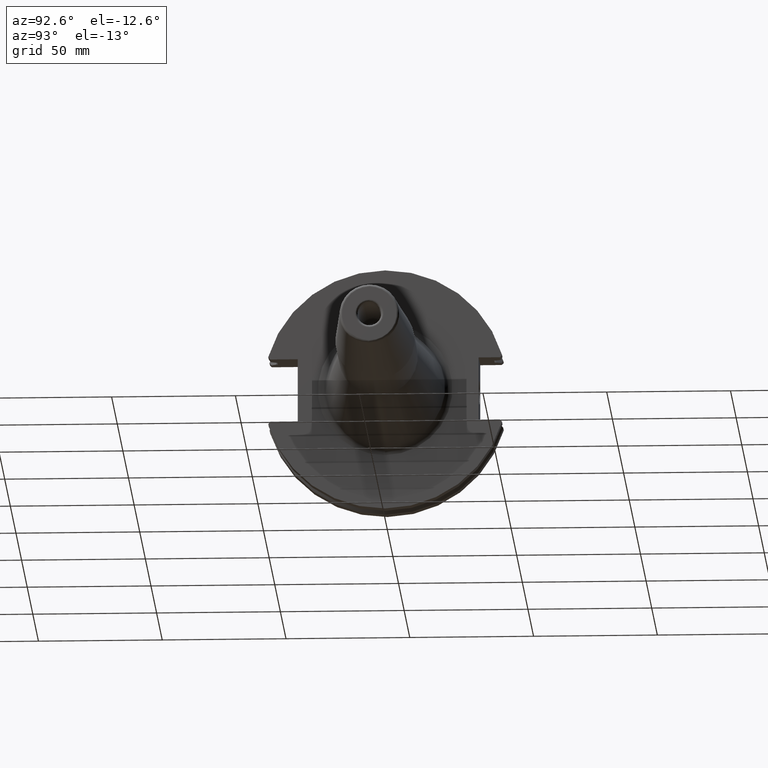
[diagram: clean part render]
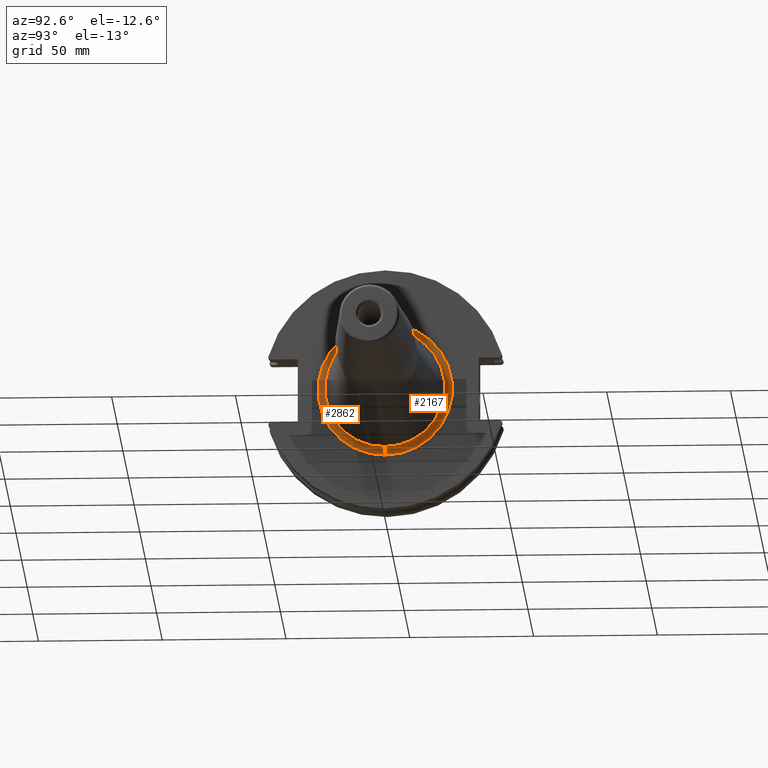
[diagram: same view with one multi-face feature highlighted, each face labeled with its STEP entity id]
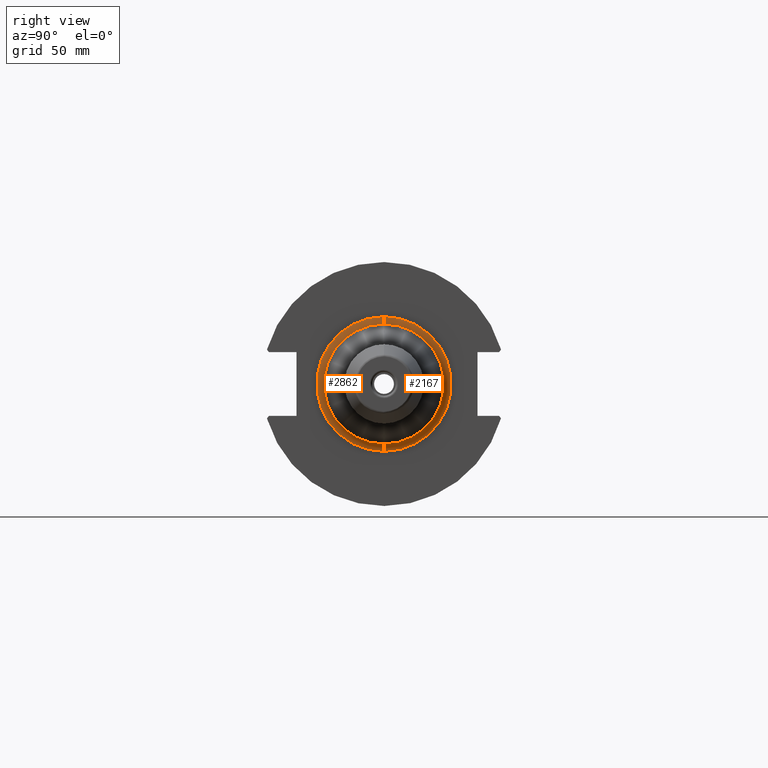
[diagram: same view with one multi-face feature highlighted, each face labeled with its STEP entity id]
A machine part, auxiliary view. The highlighted faces form ONE feature: a constant-radius fillet chain: 2 tangent blend faces with common blend radius 3 mm. The faces share edges in the B-rep.
A second angle (right view) of the same feature is appended — it is thin or edge-on in the first view.
Their STEP definitions:
[1] entity #2862 (Torus):
#575=CARTESIAN_POINT('',(1.905E1,0.E0,0.E0));
#576=DIRECTION('',(1.E0,0.E0,0.E0));
#577=DIRECTION('',(0.E0,0.E0,1.E0));
#578=AXIS2_PLACEMENT_3D('',#575,#576,#577);
#1059=CARTESIAN_POINT('',(2.205E1,0.E0,2.717382408856E1));
#1060=DIRECTION('',(0.E0,1.E0,0.E0));
#1061=DIRECTION('',(-1.391731009601E-1,0.E0,-9.902680687416E-1));
#1062=AXIS2_PLACEMENT_3D('',#1059,#1060,#1061);
#1064=CARTESIAN_POINT('',(2.163248069712E1,0.E0,0.E0));
#1065=DIRECTION('',(-1.E0,0.E0,0.E0));
#1066=DIRECTION('',(0.E0,0.E0,-1.E0));
#1067=AXIS2_PLACEMENT_3D('',#1064,#1065,#1066);
#1069=CARTESIAN_POINT('',(2.205E1,0.E0,-2.717382408856E1));
#1070=DIRECTION('',(0.E0,-1.E0,0.E0));
#1071=DIRECTION('',(-1.391731009601E-1,0.E0,9.902680687416E-1));
#1072=AXIS2_PLACEMENT_3D('',#1069,#1070,#1071);
#1321=CARTESIAN_POINT('',(2.163248069712E1,0.E0,-2.420301988234E1));
#1322=VERTEX_POINT('',#1321);
#1351=CARTESIAN_POINT('',(2.163248069712E1,0.E0,2.420301988234E1));
#1352=VERTEX_POINT('',#1351);
#1357=CARTESIAN_POINT('',(1.905E1,0.E0,-2.717382408856E1));
#1358=CARTESIAN_POINT('',(1.905E1,0.E0,2.717382408856E1));
#1359=VERTEX_POINT('',#1357);
#1360=VERTEX_POINT('',#1358);
#2851=CARTESIAN_POINT('',(2.205E1,0.E0,0.E0));
#2852=DIRECTION('',(1.E0,0.E0,0.E0));
#2853=DIRECTION('',(0.E0,0.E0,1.E0));
#2854=AXIS2_PLACEMENT_3D('',#2851,#2852,#2853);
#2855=TOROIDAL_SURFACE('',#2854,2.717382408856E1,3.E0);
#2856=ORIENTED_EDGE('',*,*,#2200,.F.);
#2857=ORIENTED_EDGE('',*,*,#2163,.F.);
#2858=ORIENTED_EDGE('',*,*,#2132,.F.);
#2859=ORIENTED_EDGE('',*,*,#2160,.T.);
#2860=EDGE_LOOP('',(#2856,#2857,#2858,#2859));
#2861=FACE_OUTER_BOUND('',#2860,.F.);
#2862=ADVANCED_FACE('',(#2861),#2855,.F.);
#579=CIRCLE('',#578,2.717382408856E1);
#1063=CIRCLE('',#1062,3.E0);
#1068=CIRCLE('',#1067,2.420301988234E1);
#1073=CIRCLE('',#1072,3.E0);
#2132=EDGE_CURVE('',#1322,#1352,#1068,.T.);
#2160=EDGE_CURVE('',#1322,#1359,#1073,.T.);
#2163=EDGE_CURVE('',#1352,#1360,#1063,.T.);
#2200=EDGE_CURVE('',#1360,#1359,#579,.T.);
[2] entity #2167 (Torus):
#525=CARTESIAN_POINT('',(2.163248069712E1,0.E0,0.E0));
#526=DIRECTION('',(1.E0,0.E0,0.E0));
#527=DIRECTION('',(0.E0,0.E0,-1.E0));
#528=AXIS2_PLACEMENT_3D('',#525,#526,#527);
#570=CARTESIAN_POINT('',(1.905E1,0.E0,0.E0));
#571=DIRECTION('',(1.E0,0.E0,0.E0));
#572=DIRECTION('',(0.E0,0.E0,-1.E0));
#573=AXIS2_PLACEMENT_3D('',#570,#571,#572);
#1059=CARTESIAN_POINT('',(2.205E1,0.E0,2.717382408856E1));
#1060=DIRECTION('',(0.E0,1.E0,0.E0));
#1061=DIRECTION('',(-1.391731009601E-1,0.E0,-9.902680687416E-1));
#1062=AXIS2_PLACEMENT_3D('',#1059,#1060,#1061);
#1069=CARTESIAN_POINT('',(2.205E1,0.E0,-2.717382408856E1));
#1070=DIRECTION('',(0.E0,-1.E0,0.E0));
#1071=DIRECTION('',(-1.391731009601E-1,0.E0,9.902680687416E-1));
#1072=AXIS2_PLACEMENT_3D('',#1069,#1070,#1071);
#1321=CARTESIAN_POINT('',(2.163248069712E1,0.E0,-2.420301988234E1));
#1322=VERTEX_POINT('',#1321);
#1351=CARTESIAN_POINT('',(2.163248069712E1,0.E0,2.420301988234E1));
#1352=VERTEX_POINT('',#1351);
#1357=CARTESIAN_POINT('',(1.905E1,0.E0,-2.717382408856E1));
#1358=CARTESIAN_POINT('',(1.905E1,0.E0,2.717382408856E1));
#1359=VERTEX_POINT('',#1357);
#1360=VERTEX_POINT('',#1358);
#2153=CARTESIAN_POINT('',(2.205E1,0.E0,0.E0));
#2154=DIRECTION('',(1.E0,0.E0,0.E0));
#2155=DIRECTION('',(0.E0,0.E0,1.E0));
#2156=AXIS2_PLACEMENT_3D('',#2153,#2154,#2155);
#2157=TOROIDAL_SURFACE('',#2156,2.717382408856E1,3.E0);
#2159=ORIENTED_EDGE('',*,*,#2158,.F.);
#2161=ORIENTED_EDGE('',*,*,#2160,.F.);
#2162=ORIENTED_EDGE('',*,*,#2148,.T.);
#2164=ORIENTED_EDGE('',*,*,#2163,.T.);
#2165=EDGE_LOOP('',(#2159,#2161,#2162,#2164));
#2166=FACE_OUTER_BOUND('',#2165,.F.);
#2167=ADVANCED_FACE('',(#2166),#2157,.F.);
#529=CIRCLE('',#528,2.420301988234E1);
#574=CIRCLE('',#573,2.717382408856E1);
#1063=CIRCLE('',#1062,3.E0);
#1073=CIRCLE('',#1072,3.E0);
#2148=EDGE_CURVE('',#1322,#1352,#529,.T.);
#2158=EDGE_CURVE('',#1359,#1360,#574,.T.);
#2160=EDGE_CURVE('',#1322,#1359,#1073,.T.);
#2163=EDGE_CURVE('',#1352,#1360,#1063,.T.);